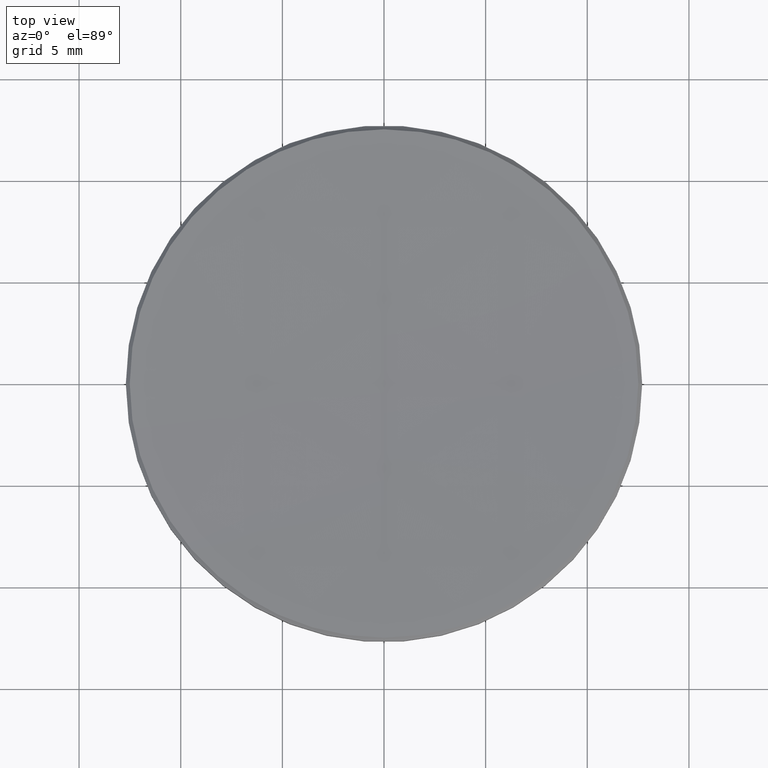
[diagram: clean part render]
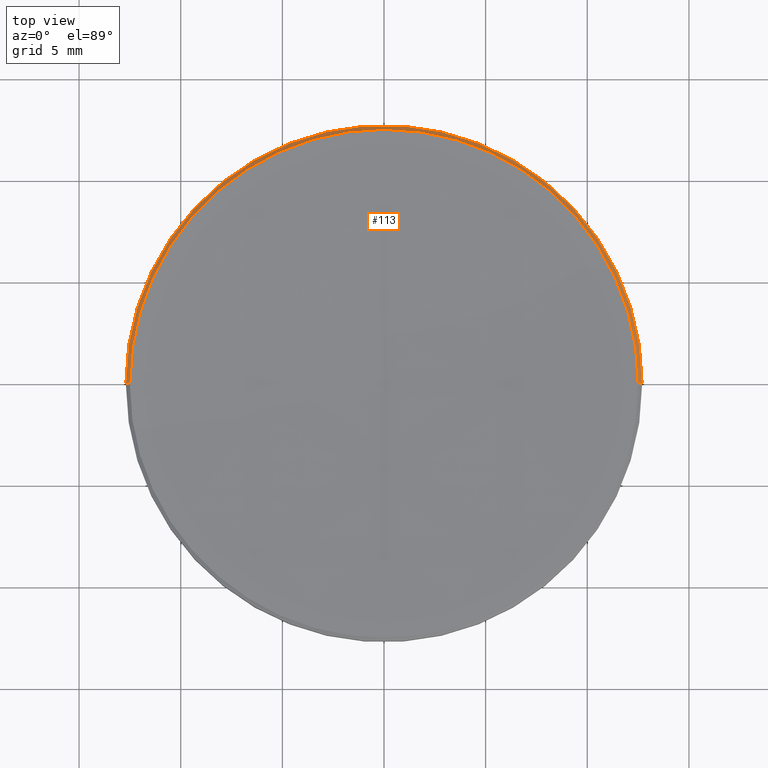
[diagram: same view with one face highlighted and labeled with its STEP entity id]
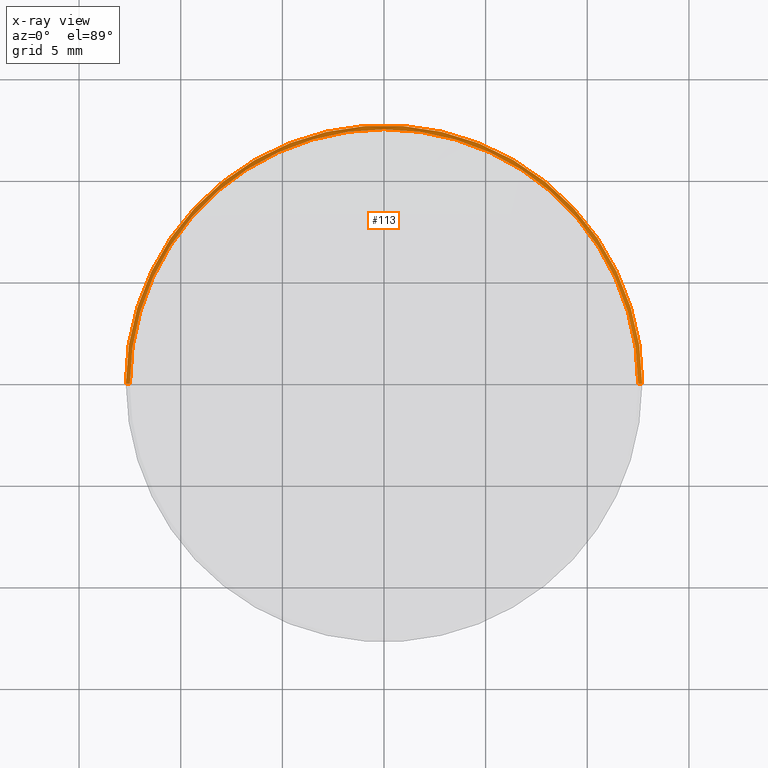
[diagram: x-ray of the same camera — body ghosted, the highlighted face saturated]
A machine part, top view. The second image highlights one B-rep face of the part: STEP entity #113.
The next image is the same camera in x-ray: the body ghosted, the highlighted face saturated — about 0% of this face is hidden behind the body in this view.
In plain terms, the highlighted conical surface has half-angle 45 deg.
Its self-contained STEP definition (entity closure, byte-faithful):
#8 = EDGE_LOOP ( 'NONE', ( #35, #164, #102, #100, #77 ) ) ;
#22 = DIRECTION ( 'NONE',  ( 0.000000000000000000, 0.000000000000000000, -1.000000000000000000 ) ) ;
#23 = DIRECTION ( 'NONE',  ( 1.000000000000000000, 0.000000000000000000, 0.000000000000000000 ) ) ;
#34 = CARTESIAN_POINT ( 'NONE',  ( 12.69999999999999929, 1.555301434917138433E-15, 5.800000000000138378 ) ) ;
#35 = ORIENTED_EDGE ( 'NONE', *, *, #135, .F. ) ;
#38 = EDGE_CURVE ( 'NONE', #54, #43, #204, .T. ) ;
#43 = VERTEX_POINT ( 'NONE', #146 ) ;
#53 = CARTESIAN_POINT ( 'NONE',  ( 0.000000000000000000, 0.000000000000000000, 5.800000000000138378 ) ) ;
#54 = VERTEX_POINT ( 'NONE', #211 ) ;
#55 = DIRECTION ( 'NONE',  ( 1.000000000000000000, 0.000000000000000000, 0.000000000000000000 ) ) ;
#69 = EDGE_CURVE ( 'NONE', #79, #186, #71, .T. ) ;
#71 = LINE ( 'NONE', #250, #106 ) ;
#77 = ORIENTED_EDGE ( 'NONE', *, *, #92, .F. ) ;
#79 = VERTEX_POINT ( 'NONE', #98 ) ;
#80 = AXIS2_PLACEMENT_3D ( 'NONE', #151, #206, #55 ) ;
#92 = EDGE_CURVE ( 'NONE', #108, #54, #138, .T. ) ;
#98 = CARTESIAN_POINT ( 'NONE',  ( 12.50735029654974895, 1.543505042782786336E-15, 5.992649703450315002 ) ) ;
#100 = ORIENTED_EDGE ( 'NONE', *, *, #38, .F. ) ;
#102 = ORIENTED_EDGE ( 'NONE', *, *, #317, .F. ) ;
#106 = VECTOR ( 'NONE', #308, 1000.000000000000114 ) ;
#108 = VERTEX_POINT ( 'NONE', #180 ) ;
#113 = ADVANCED_FACE ( 'NONE', ( #121 ), #205, .T. ) ;
#121 = FACE_OUTER_BOUND ( 'NONE', #8, .T. ) ;
#125 = CARTESIAN_POINT ( 'NONE',  ( 0.000000000000000000, 0.000000000000000000, 5.992649703450259047 ) ) ;
#131 = AXIS2_PLACEMENT_3D ( 'NONE', #173, #258, #23 ) ;
#135 = EDGE_CURVE ( 'NONE', #79, #108, #294, .T. ) ;
#138 = CIRCLE ( 'NONE', #131, 12.50735029654974895 ) ;
#146 = CARTESIAN_POINT ( 'NONE',  ( -12.69999999999999929, 0.000000000000000000, 5.800000000000138378 ) ) ;
#151 = CARTESIAN_POINT ( 'NONE',  ( 0.000000000000000000, 0.000000000000000000, 5.992649703450315002 ) ) ;
#164 = ORIENTED_EDGE ( 'NONE', *, *, #69, .T. ) ;
#170 = CARTESIAN_POINT ( 'NONE',  ( -12.50735029654975961, 0.000000000000000000, 5.992649703450259047 ) ) ;
#173 = CARTESIAN_POINT ( 'NONE',  ( 0.000000000000000000, 0.000000000000000000, 5.992649703450315002 ) ) ;
#180 = CARTESIAN_POINT ( 'NONE',  ( 0.000000000000000000, 12.50735029655037422, 5.992649703450315002 ) ) ;
#186 = VERTEX_POINT ( 'NONE', #34 ) ;
#191 = AXIS2_PLACEMENT_3D ( 'NONE', #53, #22, #251 ) ;
#204 = LINE ( 'NONE', #170, #223 ) ;
#205 = CONICAL_SURFACE ( 'NONE', #279, 12.50735029654975961, 0.7853981633977589194 ) ;
#206 = DIRECTION ( 'NONE',  ( -0.000000000000000000, -0.000000000000000000, 1.000000000000000000 ) ) ;
#209 = DIRECTION ( 'NONE',  ( -1.000000000000000000, 0.000000000000000000, 0.000000000000000000 ) ) ;
#211 = CARTESIAN_POINT ( 'NONE',  ( -12.50735029654974895, 0.000000000000000000, 5.992649703450315002 ) ) ;
#223 = VECTOR ( 'NONE', #278, 1000.000000000000114 ) ;
#250 = CARTESIAN_POINT ( 'NONE',  ( 12.50735029654975961, 1.531708650648435816E-15, 5.992649703450259047 ) ) ;
#251 = DIRECTION ( 'NONE',  ( 1.000000000000000000, 0.000000000000000000, 0.000000000000000000 ) ) ;
#258 = DIRECTION ( 'NONE',  ( -0.000000000000000000, -0.000000000000000000, 1.000000000000000000 ) ) ;
#278 = DIRECTION ( 'NONE',  ( -0.7071067811867671749, 0.000000000000000000, -0.7071067811863278596 ) ) ;
#279 = AXIS2_PLACEMENT_3D ( 'NONE', #125, #328, #209 ) ;
#294 = CIRCLE ( 'NONE', #80, 12.50735029654974895 ) ;
#295 = CIRCLE ( 'NONE', #191, 12.69999999999999929 ) ;
#308 = DIRECTION ( 'NONE',  ( 0.7071067811867671749, 8.659560562357622381E-17, -0.7071067811863278596 ) ) ;
#317 = EDGE_CURVE ( 'NONE', #43, #186, #295, .T. ) ;
#328 = DIRECTION ( 'NONE',  ( 0.000000000000000000, 0.000000000000000000, -1.000000000000000000 ) ) ;